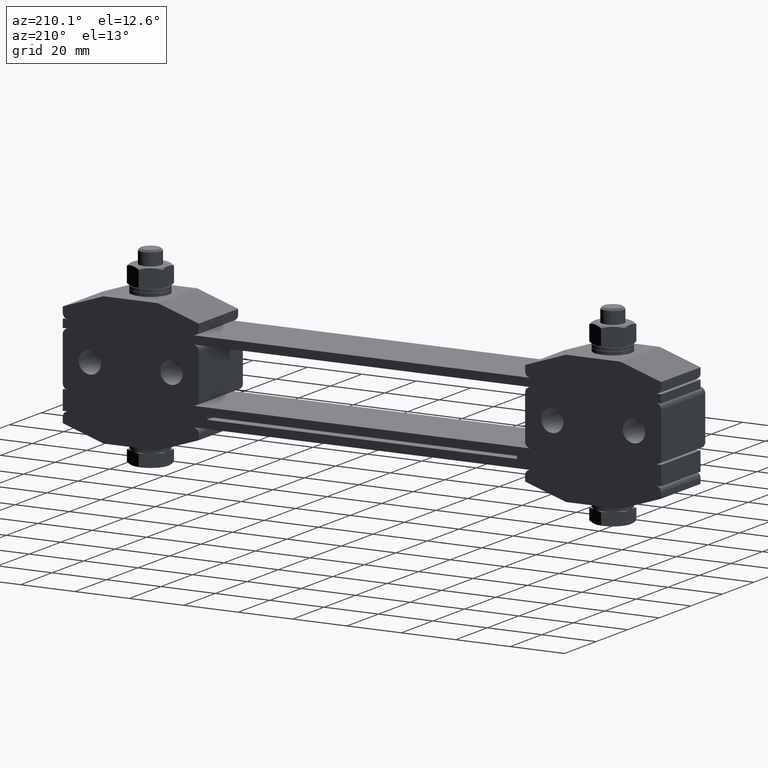
[diagram: clean part render]
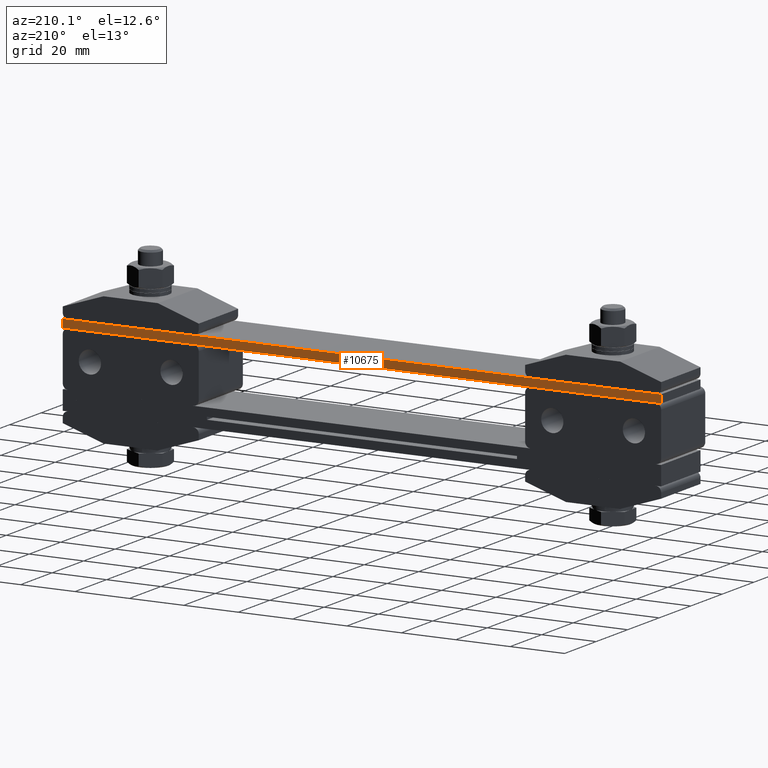
[diagram: same view with one face highlighted and labeled with its STEP entity id]
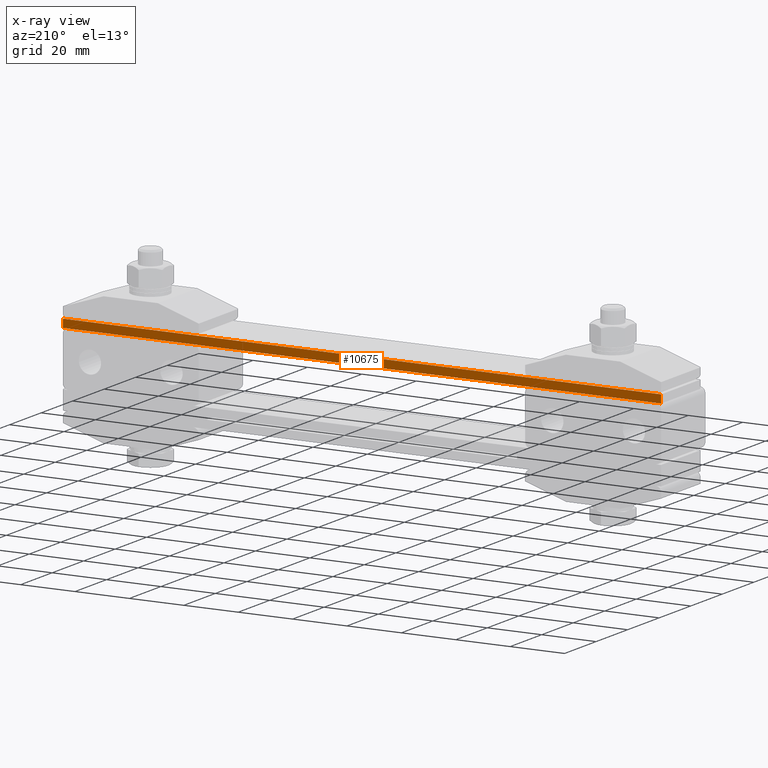
[diagram: x-ray of the same camera — body ghosted, the highlighted face saturated]
A machine part, auxiliary view. The second image highlights one B-rep face of the part: STEP entity #10675.
The next image is the same camera in x-ray: the body ghosted, the highlighted face saturated — about 0% of this face is hidden behind the body in this view.
In plain terms, the highlighted planar face has unit normal (-0, -1, 0).
Its self-contained STEP definition (entity closure, byte-faithful):
#785 = DIRECTION ( 'NONE',  ( 0.0000000000000000000, 0.0000000000000000000, -1.000000000000000000 ) ) ;
#2126 = CARTESIAN_POINT ( 'NONE',  ( -110.0000000000000000, 12.50000000000000000, 23.00000000000000000 ) ) ;
#2367 = AXIS2_PLACEMENT_3D ( 'NONE', #7306, #6307, #4736 ) ;
#2715 = ORIENTED_EDGE ( 'NONE', *, *, #19024, .T. ) ;
#2804 = VECTOR ( 'NONE', #785, 1000.000000000000000 ) ;
#3236 = CARTESIAN_POINT ( 'NONE',  ( -110.0000000000000000, 12.50000000000000000, 26.00000000000000000 ) ) ;
#4171 = DIRECTION ( 'NONE',  ( -1.000000000000000000, 5.519574696289839900E-017, 0.0000000000000000000 ) ) ;
#4736 = DIRECTION ( 'NONE',  ( 1.000000000000000000, -5.519574696289839900E-017, 0.0000000000000000000 ) ) ;
#5608 = CARTESIAN_POINT ( 'NONE',  ( -110.0000000000000000, 12.50000000000000000, 23.00000000000000000 ) ) ;
#6012 = VECTOR ( 'NONE', #16948, 1000.000000000000000 ) ;
#6307 = DIRECTION ( 'NONE',  ( -5.519574696289839900E-017, -1.000000000000000000, 0.0000000000000000000 ) ) ;
#7306 = CARTESIAN_POINT ( 'NONE',  ( -110.0000000000000000, 12.50000000000000000, 26.00000000000000000 ) ) ;
#7512 = EDGE_CURVE ( 'NONE', #21295, #21531, #17784, .T. ) ;
#8620 = EDGE_CURVE ( 'NONE', #21295, #14918, #22008, .T. ) ;
#10675 = ADVANCED_FACE ( 'NONE', ( #14196 ), #14000, .F. ) ;
#11778 = ORIENTED_EDGE ( 'NONE', *, *, #8620, .T. ) ;
#12413 = ORIENTED_EDGE ( 'NONE', *, *, #7512, .F. ) ;
#13069 = VECTOR ( 'NONE', #4171, 1000.000000000000000 ) ;
#14000 = PLANE ( 'NONE',  #2367 ) ;
#14196 = FACE_OUTER_BOUND ( 'NONE', #20464, .T. ) ;
#14918 = VERTEX_POINT ( 'NONE', #20580 ) ;
#15280 = EDGE_CURVE ( 'NONE', #21531, #18336, #17455, .T. ) ;
#16170 = VECTOR ( 'NONE', #16636, 1000.000000000000000 ) ;
#16636 = DIRECTION ( 'NONE',  ( -1.000000000000000000, 5.519574696289839900E-017, 0.0000000000000000000 ) ) ;
#16948 = DIRECTION ( 'NONE',  ( 0.0000000000000000000, 0.0000000000000000000, -1.000000000000000000 ) ) ;
#17455 = LINE ( 'NONE', #3236, #6012 ) ;
#17784 = LINE ( 'NONE', #21541, #16170 ) ;
#18336 = VERTEX_POINT ( 'NONE', #2126 ) ;
#19024 = EDGE_CURVE ( 'NONE', #14918, #18336, #21317, .T. ) ;
#19659 = CARTESIAN_POINT ( 'NONE',  ( 110.0000000000000000, 12.50000000000000000, 26.00000000000000000 ) ) ;
#20163 = ORIENTED_EDGE ( 'NONE', *, *, #15280, .F. ) ;
#20421 = CARTESIAN_POINT ( 'NONE',  ( -110.0000000000000000, 12.50000000000000000, 26.00000000000000000 ) ) ;
#20464 = EDGE_LOOP ( 'NONE', ( #2715, #20163, #12413, #11778 ) ) ;
#20580 = CARTESIAN_POINT ( 'NONE',  ( 110.0000000000000000, 12.50000000000000000, 23.00000000000000000 ) ) ;
#21102 = CARTESIAN_POINT ( 'NONE',  ( 110.0000000000000000, 12.50000000000000000, 26.00000000000000000 ) ) ;
#21295 = VERTEX_POINT ( 'NONE', #19659 ) ;
#21317 = LINE ( 'NONE', #5608, #13069 ) ;
#21531 = VERTEX_POINT ( 'NONE', #20421 ) ;
#21541 = CARTESIAN_POINT ( 'NONE',  ( -110.0000000000000000, 12.50000000000000000, 26.00000000000000000 ) ) ;
#22008 = LINE ( 'NONE', #21102, #2804 ) ;